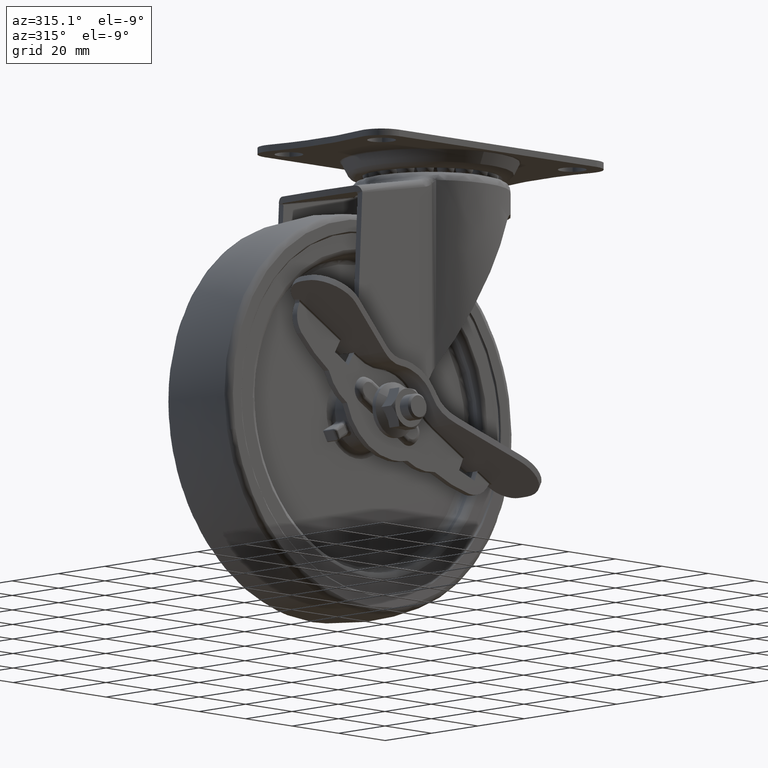
[diagram: clean part render]
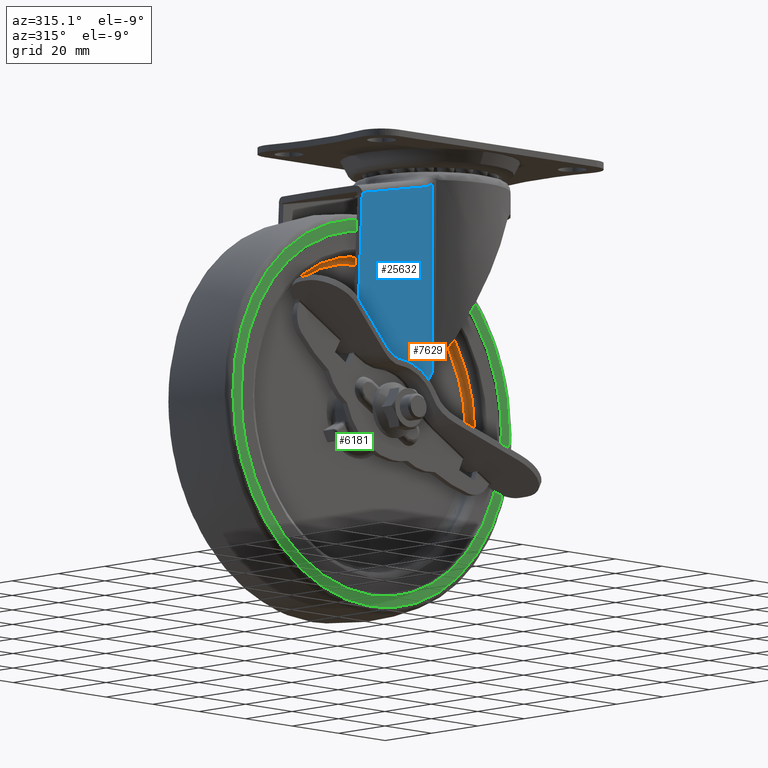
[diagram: same view with three faces highlighted in distinct colors, each labeled with its STEP entity id]
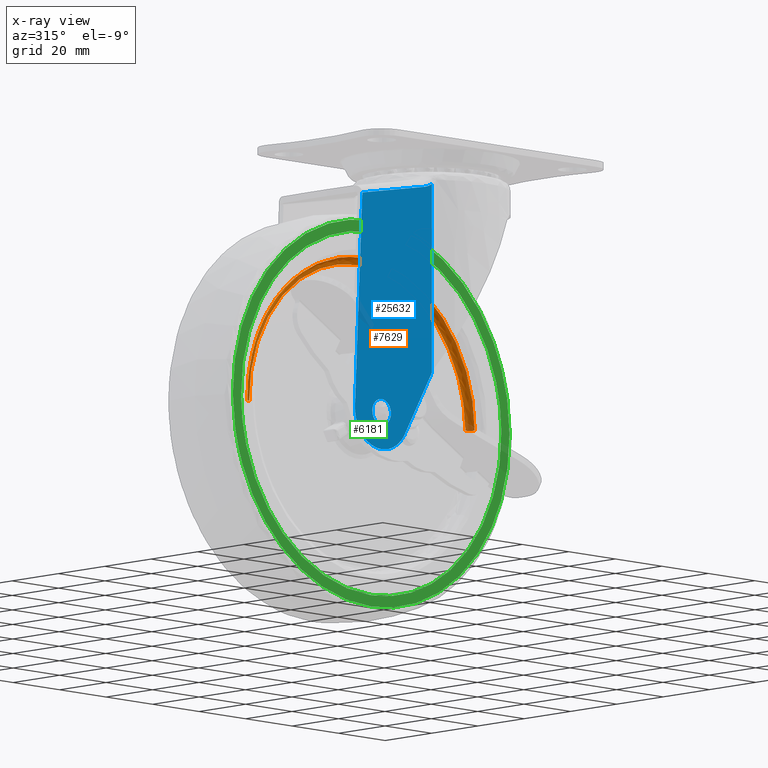
[diagram: x-ray of the same camera — body ghosted, the three highlighted faces saturated]
A machine part, auxiliary view with three faces highlighted in distinct colors.
The next image is the same camera in x-ray (body ghosted, the three faces saturated) — at least one of them is partly hidden behind the body in this view.
Their STEP definitions:

[orange] entity #7629 — the highlighted face is a freeform B-spline surface patch.
#6978=CARTESIAN_POINT('',(-74.180656951126849,-9.499999997735975,-50.114803033572969));
#6979=VERTEX_POINT('',#6978);
#6985=CARTESIAN_POINT('',(-39.0,-9.500000000000000,-35.0));
#6986=VERTEX_POINT('',#6985);
#6987=CARTESIAN_POINT('',(-74.180656951126849,-9.499999997735975,-50.114803033572969));
#6988=CARTESIAN_POINT('',(-72.698974606424272,-9.499999997873353,-48.553317213718813));
#6989=CARTESIAN_POINT('',(-69.602717102643382,-9.499999998141838,-45.697791201050272));
#6990=CARTESIAN_POINT('',(-64.317708608363191,-9.499999998548347,-41.964229653352561));
#6991=CARTESIAN_POINT('',(-59.036626658867462,-9.499999998910809,-39.202302624213011));
#6992=CARTESIAN_POINT('',(-53.564279424862292,-9.499999999249811,-37.133768420361100));
#6993=CARTESIAN_POINT('',(-47.097699198028941,-9.499999999615170,-35.479392849362632));
#6994=CARTESIAN_POINT('',(-42.075151965089411,-9.499999999862128,-34.999603240683719));
#6995=CARTESIAN_POINT('',(-39.0,-9.500000000000000,-35.0));
#6996=B_SPLINE_CURVE_WITH_KNOTS('',3,(#6987,#6988,#6989,#6990,#6991,#6992,#6993,#6994,#6995),.UNSPECIFIED.,.F.,.U.,(4,1,1,1,1,1,4),(0.000000041005450,6.457754716654250,12.608029212565750,19.373335711454800,24.293478955838559,30.136229500375691,39.361603824997950),.UNSPECIFIED.);
#6997=EDGE_CURVE('',#6979,#6986,#6996,.T.);
#6999=CARTESIAN_POINT('',(9.496170643882927,-9.499999995595116,-82.890547065486345));
#7000=VERTEX_POINT('',#6999);
#7001=CARTESIAN_POINT('',(-39.0,-9.500000000000000,-35.0));
#7002=CARTESIAN_POINT('',(-35.555815748306223,-9.499999999841672,-34.999371147322421));
#7003=CARTESIAN_POINT('',(-30.635892662372001,-9.499999999591463,-35.526395429319322));
#7004=CARTESIAN_POINT('',(-23.969897411268740,-9.499999999204812,-37.290516568198278));
#7005=CARTESIAN_POINT('',(-18.352660169065640,-9.499999998848997,-39.438150934517708));
#7006=CARTESIAN_POINT('',(-12.651581532730759,-9.499999998443604,-42.591375214210089));
#7007=CARTESIAN_POINT('',(-6.507479745206156,-9.499999997951212,-47.215544521397952));
#7008=CARTESIAN_POINT('',(-1.428287148660754,-9.499999997478104,-52.481594693142483));
#7009=CARTESIAN_POINT('',(2.430644757125946,-9.499999997046885,-58.086832356298181));
#7010=CARTESIAN_POINT('',(5.121491607681079,-9.499999996692935,-63.126890719148548));
#7011=CARTESIAN_POINT('',(7.100567144622151,-9.499999996378559,-68.070112238423519));
#7012=CARTESIAN_POINT('',(8.913860888032179,-9.499999995987919,-74.828264317330778));
#7013=CARTESIAN_POINT('',(9.457008108440796,-9.499999995739927,-79.741833588307088));
#7014=CARTESIAN_POINT('',(9.496170643882927,-9.499999995595116,-82.890547065486345));
#7015=B_SPLINE_CURVE_WITH_KNOTS('',3,(#7001,#7002,#7003,#7004,#7005,#7006,#7007,#7008,#7009,#7010,#7011,#7012,#7013,#7014),.UNSPECIFIED.,.F.,.U.,(4,1,1,1,1,1,1,1,1,1,1,4),(0.000000141807746,10.332371825696880,14.760597721479680,20.664842917087551,28.340381362794211,34.244595621296753,43.691335859950563,50.186003276613540,54.614217320634587,60.813693660618092,66.127497023698297,75.574269539249329),.UNSPECIFIED.);
#7016=EDGE_CURVE('',#6986,#7000,#7015,.T.);
#7077=CARTESIAN_POINT('',(-87.496170643882920,-9.499999995595115,-84.109452934513655));
#7078=VERTEX_POINT('',#7077);
#7095=CARTESIAN_POINT('',(-87.496170643882920,-9.499999995595115,-84.109452934513655));
#7096=CARTESIAN_POINT('',(-87.525686591361563,-9.499999995700019,-81.770165551270765));
#7097=CARTESIAN_POINT('',(-87.251044590311494,-9.499999995920566,-77.184910461741893));
#7098=CARTESIAN_POINT('',(-86.097336204739236,-9.499999996228809,-71.536492359336222));
#7099=CARTESIAN_POINT('',(-84.299252534061395,-9.499999996566954,-65.864607341208099));
#7100=CARTESIAN_POINT('',(-82.058760405943531,-9.499999996894452,-60.868452307373971));
#7101=CARTESIAN_POINT('',(-78.513708512122292,-9.499999997313267,-55.140883940754051));
#7102=CARTESIAN_POINT('',(-75.858260266579251,-9.499999997580641,-51.882403660125547));
#7103=CARTESIAN_POINT('',(-74.180656951126849,-9.499999997735975,-50.114803033572969));
#7104=B_SPLINE_CURVE_WITH_KNOTS('',3,(#7095,#7096,#7097,#7098,#7099,#7100,#7101,#7102,#7103),.UNSPECIFIED.,.F.,.U.,(4,1,1,1,1,1,4),(0.000000036565730,7.018414573749677,13.744427147615960,17.253662044039601,24.856910431854370,30.120749616835511,37.431609632643173),.UNSPECIFIED.);
#7105=EDGE_CURVE('',#7078,#6979,#7104,.T.);
#7496=CARTESIAN_POINT('',(7.496328603381452,-7.500000000000002,-82.915679143672293));
#7497=VERTEX_POINT('',#7496);
#7498=CARTESIAN_POINT('',(9.496170643882927,-9.499999995595116,-82.890547065486345));
#7499=CARTESIAN_POINT('',(9.496537260853209,-9.221773971194303,-82.890542458131137));
#7500=CARTESIAN_POINT('',(9.398945375147148,-8.763955988531768,-82.891768898357924));
#7501=CARTESIAN_POINT('',(9.009339062976466,-8.131150284390106,-82.896665093148258));
#7502=CARTESIAN_POINT('',(8.395790611878212,-7.640111305720833,-82.904375575972310));
#7503=CARTESIAN_POINT('',(7.807285632403349,-7.499499035645418,-82.911771336775388));
#7504=CARTESIAN_POINT('',(7.496328603381452,-7.500000000000002,-82.915679143672293));
#7505=B_SPLINE_CURVE_WITH_KNOTS('',3,(#7498,#7499,#7500,#7501,#7502,#7503,#7504),.UNSPECIFIED.,.F.,.U.,(4,1,1,1,4),(0.000000633035791,0.834508086223986,1.374522799296816,2.208981106556507,3.141671459302709),.UNSPECIFIED.);
#7506=EDGE_CURVE('',#7000,#7497,#7505,.T.);
#7527=CARTESIAN_POINT('',(-85.496328603381443,-7.500000000000002,-84.084320856327707));
#7528=VERTEX_POINT('',#7527);
#7546=CARTESIAN_POINT('',(-87.496170643882920,-9.499999995595115,-84.109452934513655));
#7547=CARTESIAN_POINT('',(-87.496276462990849,-9.287276586730439,-84.109454264397783));
#7548=CARTESIAN_POINT('',(-87.432929846458578,-8.894642713717198,-84.108658185544627));
#7549=CARTESIAN_POINT('',(-87.172242581246792,-8.360416293587067,-84.105382120502938));
#7550=CARTESIAN_POINT('',(-86.816803923201903,-7.968279253279754,-84.100915311652116));
#7551=CARTESIAN_POINT('',(-86.264880293235535,-7.609035486608735,-84.093979269888237));
#7552=CARTESIAN_POINT('',(-85.807323328989867,-7.499456634869910,-84.088229136958304));
#7553=CARTESIAN_POINT('',(-85.496328603381443,-7.500000000000002,-84.084320856327707));
#7554=B_SPLINE_CURVE_WITH_KNOTS('',3,(#7546,#7547,#7548,#7549,#7550,#7551,#7552,#7553),.UNSPECIFIED.,.F.,.U.,(4,1,1,1,1,4),(0.000000633038859,0.638145693421199,1.178170104753059,1.767149292912491,2.208981106557346,3.141671459302707),.UNSPECIFIED.);
#7555=EDGE_CURVE('',#7078,#7528,#7554,.T.);
#7562=CARTESIAN_POINT('',(-87.491329757116077,-9.639074218226494,-84.109392098763081));
#7563=CARTESIAN_POINT('',(-88.100721855879129,-9.639074218226494,-35.618062341647011));
#7564=CARTESIAN_POINT('',(-39.609392098763081,-9.639074218226494,-35.008670242883930));
#7565=CARTESIAN_POINT('',(8.881937658352985,-9.639074218226494,-34.399278144120863));
#7566=CARTESIAN_POINT('',(9.491329757116072,-9.639074218226494,-82.890607901236933));
#7567=CARTESIAN_POINT('',(-87.651232687144017,-7.344925651964494,-84.111401604021353));
#7568=CARTESIAN_POINT('',(-88.262634291165369,-7.344925651964491,-35.460168916877343));
#7569=CARTESIAN_POINT('',(-39.611401604021360,-7.344925651964494,-34.848767312855990));
#7570=CARTESIAN_POINT('',(9.039831083122648,-7.344925651964491,-34.237365708834616));
#7571=CARTESIAN_POINT('',(9.651232687144017,-7.344925651964494,-82.888598395978661));
#7572=CARTESIAN_POINT('',(-85.357265261717131,-7.504841272936474,-84.082573241696025));
#7573=CARTESIAN_POINT('',(-85.939838503413171,-7.504841272936472,-37.725307979978915));
#7574=CARTESIAN_POINT('',(-39.582573241696046,-7.504841272936474,-37.142734738282883));
#7575=CARTESIAN_POINT('',(6.774692020021091,-7.504841272936472,-36.560161496586844));
#7576=CARTESIAN_POINT('',(7.357265261717119,-7.504841272936474,-82.917426758303961));
#7584=(BOUNDED_SURFACE()B_SPLINE_SURFACE(2,2,((#7562,#7567,#7572),(#7563,#7568,#7573),(#7564,#7569,#7574),(#7565,#7570,#7575),(#7566,#7571,#7576)),.UNSPECIFIED.,.F.,.F.,.U.)B_SPLINE_SURFACE_WITH_KNOTS((3,2,3),(3,3),(0.0,80.349409823239583,160.698819646479190),(0.0,3.644747891325113),.UNSPECIFIED.)GEOMETRIC_REPRESENTATION_ITEM()RATIONAL_B_SPLINE_SURFACE(((0.910479795090997,0.597479572841838,0.910479806786608),(0.643806437242182,0.422481857576905,0.643806445512228),(0.910479795090997,0.597479572841838,0.910479806786608),(0.643806437242182,0.422481857576905,0.643806445512228),(0.910479795090997,0.597479572841838,0.910479806786608)))REPRESENTATION_ITEM('')SURFACE());
#7585=ORIENTED_EDGE('',*,*,#7016,.F.);
#7586=ORIENTED_EDGE('',*,*,#6997,.F.);
#7587=ORIENTED_EDGE('',*,*,#7105,.F.);
#7588=ORIENTED_EDGE('',*,*,#7555,.T.);
#7589=CARTESIAN_POINT('',(-39.0,-7.500000000000000,-37.000000000000007));
#7590=VERTEX_POINT('',#7589);
#7591=CARTESIAN_POINT('',(-85.496328603381443,-7.500000000000002,-84.084320856327707));
#7592=CARTESIAN_POINT('',(-85.526585281687360,-7.500000000000030,-81.687814578225755));
#7593=CARTESIAN_POINT('',(-85.215320212881679,-7.499999999999951,-76.890184472976102));
#7594=CARTESIAN_POINT('',(-83.708830454282406,-7.500000000000069,-70.132953492067386));
#7595=CARTESIAN_POINT('',(-81.446624383377241,-7.499999999999910,-64.208205602314351));
#7596=CARTESIAN_POINT('',(-78.908433404002935,-7.500000000000129,-59.466980004247780));
#7597=CARTESIAN_POINT('',(-75.834781542739648,-7.500000000000008,-54.941843221002422));
#7598=CARTESIAN_POINT('',(-71.365513133245429,-7.499999999999689,-49.785178882975913));
#7599=CARTESIAN_POINT('',(-65.537122264330634,-7.500000000000283,-45.038682624414172));
#7600=CARTESIAN_POINT('',(-59.007927340037952,-7.499999999999644,-41.358156468656396));
#7601=CARTESIAN_POINT('',(-52.656313983041322,-7.500000000000143,-38.863772364122887));
#7602=CARTESIAN_POINT('',(-45.902456823645203,-7.499999999999909,-37.334635048283111));
#7603=CARTESIAN_POINT('',(-41.204950248261902,-7.500000000000086,-36.999928481930887));
#7604=CARTESIAN_POINT('',(-39.0,-7.500000000000000,-37.000000000000007));
#7605=B_SPLINE_CURVE_WITH_KNOTS('',3,(#7591,#7592,#7593,#7594,#7595,#7596,#7597,#7598,#7599,#7600,#7601,#7602,#7603,#7604),.UNSPECIFIED.,.F.,.U.,(4,1,1,1,1,1,1,1,1,1,1,4),(0.000000152295399,7.190078892850991,14.380167339055140,20.707453227692501,26.171917276746999,30.486029994981681,37.100753003393791,46.591753619086830,52.919031102369971,59.533939999015900,67.011620260206101,73.626482814978502),.UNSPECIFIED.);
#7606=EDGE_CURVE('',#7528,#7590,#7605,.T.);
#7607=ORIENTED_EDGE('',*,*,#7606,.T.);
#7608=CARTESIAN_POINT('',(-39.0,-7.500000000000000,-37.000000000000007));
#7609=CARTESIAN_POINT('',(-36.830067663631091,-7.500000000000018,-36.999921324377453));
#7610=CARTESIAN_POINT('',(-32.112766594945327,-7.499999999999977,-37.330694781935527));
#7611=CARTESIAN_POINT('',(-26.203146252249802,-7.500000000000023,-38.665610526675302));
#7612=CARTESIAN_POINT('',(-20.697231267462321,-7.499999999999991,-40.656563934896909));
#7613=CARTESIAN_POINT('',(-15.768117632838271,-7.499999999999927,-43.058642224380122));
#7614=CARTESIAN_POINT('',(-10.965854283023811,-7.500000000000187,-46.255850008759339));
#7615=CARTESIAN_POINT('',(-6.663976854432420,-7.499999999999829,-49.946898497909217));
#7616=CARTESIAN_POINT('',(-3.252647599961513,-7.500000000000024,-53.615523521629179));
#7617=CARTESIAN_POINT('',(-0.152165484676570,-7.500000000000086,-57.784083786737462));
#7618=CARTESIAN_POINT('',(2.681029525956723,-7.499999999999952,-62.586362143312613));
#7619=CARTESIAN_POINT('',(4.976426669987720,-7.500000000000087,-67.983600451373505));
#7620=CARTESIAN_POINT('',(6.900930989684400,-7.500000000000011,-74.903287990607822));
#7621=CARTESIAN_POINT('',(7.457630195215247,-7.499999999999825,-79.802466830171099));
#7622=CARTESIAN_POINT('',(7.496328603381452,-7.500000000000002,-82.915679143672293));
#7623=B_SPLINE_CURVE_WITH_KNOTS('',3,(#7608,#7609,#7610,#7611,#7612,#7613,#7614,#7615,#7616,#7617,#7618,#7619,#7620,#7621,#7622),.UNSPECIFIED.,.F.,.U.,(4,1,1,1,1,1,1,1,1,1,1,1,4),(0.000000145821645,6.509812728814410,14.151893065257980,18.114452504288248,24.058291204621678,30.568157627513219,35.379803995993662,41.040533731120007,45.569151897447242,50.946893683608252,57.739813653531812,63.117555439695607,72.457804845170074),.UNSPECIFIED.);
#7624=EDGE_CURVE('',#7590,#7497,#7623,.T.);
#7625=ORIENTED_EDGE('',*,*,#7624,.T.);
#7626=ORIENTED_EDGE('',*,*,#7506,.F.);
#7627=EDGE_LOOP('',(#7585,#7586,#7587,#7588,#7607,#7625,#7626));
#7628=FACE_OUTER_BOUND('',#7627,.T.);
#7629=ADVANCED_FACE('',(#7628),#7584,.F.);

[blue] entity #25632 — the highlighted face is a freeform B-spline surface patch.
#23123=CARTESIAN_POINT('',(-36.246582802091638,-18.0,-86.401496770358406));
#23124=VERTEX_POINT('',#23123);
#23130=CARTESIAN_POINT('',(-35.000000000003283,-17.999999999999570,-83.499994880052640));
#23131=VERTEX_POINT('',#23130);
#23132=CARTESIAN_POINT('',(-36.246582802091638,-18.0,-86.401496770358406));
#23133=CARTESIAN_POINT('',(-35.878242760254132,-17.999999999999918,-86.052638804016354));
#23134=CARTESIAN_POINT('',(-35.237704646695882,-17.999999999999790,-85.156265672622084));
#23135=CARTESIAN_POINT('',(-34.999138961856559,-17.999999999999620,-84.075002849923550));
#23136=CARTESIAN_POINT('',(-35.000000000003283,-17.999999999999570,-83.499994880052640));
#23137=B_SPLINE_CURVE_WITH_KNOTS('',3,(#23132,#23133,#23134,#23135,#23136),.UNSPECIFIED.,.F.,.U.,(4,1,4),(0.000000117775536,1.521778760297003,3.246404302634628),.UNSPECIFIED.);
#23138=EDGE_CURVE('',#23124,#23131,#23137,.T.);
#23140=CARTESIAN_POINT('',(-39.0,-18.0,-79.500000000000000));
#23141=VERTEX_POINT('',#23140);
#23142=CARTESIAN_POINT('',(-35.000000000003283,-17.999999999999570,-83.499994880052640));
#23143=CARTESIAN_POINT('',(-34.999870221922492,-17.999999999999559,-83.107287149434256));
#23144=CARTESIAN_POINT('',(-35.126154847170142,-17.999999999999609,-82.256481420677716));
#23145=CARTESIAN_POINT('',(-35.723201400971753,-17.999999999999670,-81.069719462325452));
#23146=CARTESIAN_POINT('',(-36.685492100371810,-17.999999999999659,-80.153860126783812));
#23147=CARTESIAN_POINT('',(-37.821967028561232,-18.000000000000131,-79.616555386016103));
#23148=CARTESIAN_POINT('',(-38.607288934396223,-17.999999999999758,-79.499841779476981));
#23149=CARTESIAN_POINT('',(-39.0,-18.0,-79.500000000000000));
#23150=B_SPLINE_CURVE_WITH_KNOTS('',3,(#23142,#23143,#23144,#23145,#23146,#23147,#23148,#23149),.UNSPECIFIED.,.F.,.U.,(4,1,1,1,1,4),(0.000000495139722,1.178122879609247,2.552673060847774,3.927075995230684,5.105217704747391,6.283340091622367),.UNSPECIFIED.);
#23151=EDGE_CURVE('',#23131,#23141,#23150,.T.);
#23153=CARTESIAN_POINT('',(-41.753417197908362,-18.0,-80.598503229641608));
#23154=VERTEX_POINT('',#23153);
#23155=CARTESIAN_POINT('',(-39.0,-18.0,-79.500000000000000));
#23156=CARTESIAN_POINT('',(-39.474565378936973,-17.999999999999979,-79.499688711971729));
#23157=CARTESIAN_POINT('',(-40.486565318988632,-18.000000000000011,-79.682288636662506));
#23158=CARTESIAN_POINT('',(-41.363701630401792,-18.0,-80.227818857619241));
#23159=CARTESIAN_POINT('',(-41.753417197908362,-18.0,-80.598503229641608));
#23160=B_SPLINE_CURVE_WITH_KNOTS('',3,(#23155,#23156,#23157,#23158,#23159),.UNSPECIFIED.,.F.,.U.,(4,1,4),(0.000000113859853,1.423598938665041,3.036943314918344),.UNSPECIFIED.);
#23161=EDGE_CURVE('',#23141,#23154,#23160,.T.);
#23245=CARTESIAN_POINT('',(-42.999999999996717,-17.999999999999570,-83.500005119947375));
#23246=VERTEX_POINT('',#23245);
#23247=CARTESIAN_POINT('',(-41.753417197908362,-18.0,-80.598503229641608));
#23248=CARTESIAN_POINT('',(-42.171106401164252,-17.999999999999929,-80.993688817557413));
#23249=CARTESIAN_POINT('',(-42.791205673738503,-17.999999999999780,-81.911026918535711));
#23250=CARTESIAN_POINT('',(-43.000497501499026,-17.999999999999581,-82.992685729520460));
#23251=CARTESIAN_POINT('',(-42.999999999996717,-17.999999999999570,-83.500005119947375));
#23252=B_SPLINE_CURVE_WITH_KNOTS('',3,(#23247,#23248,#23249,#23250,#23251),.UNSPECIFIED.,.F.,.U.,(4,1,4),(0.000000117776090,1.724625660117574,3.246404302634649),.UNSPECIFIED.);
#23253=EDGE_CURVE('',#23154,#23246,#23252,.T.);
#23255=CARTESIAN_POINT('',(-39.0,-18.0,-87.500000000000014));
#23256=VERTEX_POINT('',#23255);
#23257=CARTESIAN_POINT('',(-42.999999999996717,-17.999999999999570,-83.500005119947375));
#23258=CARTESIAN_POINT('',(-43.000761269319973,-17.999999999999581,-84.056490190204130));
#23259=CARTESIAN_POINT('',(-42.833432177064402,-17.999999999999599,-84.841262187843867));
#23260=CARTESIAN_POINT('',(-42.310584435340751,-17.999999999999648,-85.790754140253043));
#23261=CARTESIAN_POINT('',(-41.674866043257602,-17.999999999999741,-86.546810761890583));
#23262=CARTESIAN_POINT('',(-40.570421789466927,-17.999999999999829,-87.284876279869593));
#23263=CARTESIAN_POINT('',(-39.556400671042447,-17.999999999999961,-87.500683087395345));
#23264=CARTESIAN_POINT('',(-39.0,-18.0,-87.500000000000014));
#23265=B_SPLINE_CURVE_WITH_KNOTS('',3,(#23257,#23258,#23259,#23260,#23261,#23262,#23263,#23264),.UNSPECIFIED.,.F.,.U.,(4,1,1,1,1,4),(0.000000495146915,1.669016749970108,2.356264584677632,3.239778080415392,4.614323834631581,6.283340091622303),.UNSPECIFIED.);
#23266=EDGE_CURVE('',#23246,#23256,#23265,.T.);
#23268=CARTESIAN_POINT('',(-39.0,-18.0,-87.500000000000014));
#23269=CARTESIAN_POINT('',(-38.462145964755493,-18.000000000000039,-87.500618492938401));
#23270=CARTESIAN_POINT('',(-37.450379245465690,-17.999999999999929,-87.292562437833055));
#23271=CARTESIAN_POINT('',(-36.590605128250253,-18.000000000000060,-86.728388024498486));
#23272=CARTESIAN_POINT('',(-36.246582802091638,-18.0,-86.401496770358406));
#23273=B_SPLINE_CURVE_WITH_KNOTS('',3,(#23268,#23269,#23270,#23271,#23272),.UNSPECIFIED.,.F.,.U.,(4,1,4),(0.000000113858127,1.613344490206723,3.036943314918343),.UNSPECIFIED.);
#23274=EDGE_CURVE('',#23256,#23124,#23273,.T.);
#24120=CARTESIAN_POINT('',(-47.324437871731007,-18.0,-16.692599560874150));
#24121=VERTEX_POINT('',#24120);
#24129=CARTESIAN_POINT('',(-20.595461981799801,-18.0,-11.979562999337301));
#24130=VERTEX_POINT('',#24129);
#24131=CARTESIAN_POINT('',(-20.595461981799801,-18.0,-11.979562999337301));
#24132=CARTESIAN_POINT('',(-47.324437871731007,-18.0,-16.692599560874150));
#24133=QUASI_UNIFORM_CURVE('',1,(#24131,#24132),.UNSPECIFIED.,.F.,.U.);
#24134=EDGE_CURVE('',#24130,#24121,#24133,.T.);
#24771=CARTESIAN_POINT('',(-17.385338650713699,-18.0,-10.731464382610120));
#24772=VERTEX_POINT('',#24771);
#24788=CARTESIAN_POINT('',(-17.385338650713699,-18.0,-68.974435464691908));
#24789=VERTEX_POINT('',#24788);
#24790=CARTESIAN_POINT('',(-17.385338650713699,-18.0,-68.974435464691908));
#24791=CARTESIAN_POINT('',(-17.385338650713699,-18.0,-10.731464382610120));
#24792=QUASI_UNIFORM_CURVE('',1,(#24790,#24791),.UNSPECIFIED.,.F.,.U.);
#24793=EDGE_CURVE('',#24789,#24772,#24792,.T.);
#24945=CARTESIAN_POINT('',(-50.486919999999998,-18.0,-82.951737399999885));
#24946=VERTEX_POINT('',#24945);
#24973=CARTESIAN_POINT('',(-29.029918070220400,-18.0,-89.231270916077904));
#24974=VERTEX_POINT('',#24973);
#24980=CARTESIAN_POINT('',(-50.486919999999998,-18.0,-82.951737399999885));
#24981=CARTESIAN_POINT('',(-50.532869287687006,-17.999999999999989,-83.909311454658450));
#24982=CARTESIAN_POINT('',(-50.404911673648087,-18.000000000000021,-85.554840938245874));
#24983=CARTESIAN_POINT('',(-49.714636026242111,-17.999999999999989,-87.859758025041188));
#24984=CARTESIAN_POINT('',(-48.587361476790953,-18.000000000000011,-90.033470811992288));
#24985=CARTESIAN_POINT('',(-46.963531714187617,-17.999999999999890,-91.931152706382008));
#24986=CARTESIAN_POINT('',(-45.063260121907710,-18.000000000000330,-93.342707281576267));
#24987=CARTESIAN_POINT('',(-43.125605805073192,-17.999999999999179,-94.307192483823840));
#24988=CARTESIAN_POINT('',(-41.038051287424452,-18.000000000001268,-94.894669506110205));
#24989=CARTESIAN_POINT('',(-38.917931146429417,-17.999999999999432,-95.056619876031831));
#24990=CARTESIAN_POINT('',(-36.524796197899157,-18.000000000000160,-94.827388965606815));
#24991=CARTESIAN_POINT('',(-34.299771092246218,-17.999999999999972,-94.103854418682474));
#24992=CARTESIAN_POINT('',(-32.441749064227707,-18.000000000000028,-92.993286169027797));
#24993=CARTESIAN_POINT('',(-30.667107582074589,-17.999999999999819,-91.560931260121279));
#24994=CARTESIAN_POINT('',(-29.626566788318438,-18.000000000000401,-90.270591926959199));
#24995=CARTESIAN_POINT('',(-29.029918070220400,-18.0,-89.231270916077904));
#24996=B_SPLINE_CURVE_WITH_KNOTS('',3,(#24980,#24981,#24982,#24983,#24984,#24985,#24986,#24987,#24988,#24989,#24990,#24991,#24992,#24993,#24994,#24995),.UNSPECIFIED.,.F.,.U.,(4,1,1,1,1,1,1,1,1,1,1,1,1,4),(0.000000662586086,2.875968530343013,4.913106758737378,7.189952054102086,10.185822380449970,12.342865321516660,14.260201979174980,16.656609576629609,18.813632874855770,20.611156935689628,23.846699073999059,25.764076831970499,27.082253736779190,30.677151544267090),.UNSPECIFIED.);
#24997=EDGE_CURVE('',#24946,#24974,#24996,.T.);
#25084=CARTESIAN_POINT('',(-47.324437871731007,-18.0,-16.692599560874150));
#25085=CARTESIAN_POINT('',(-50.486919999999998,-18.0,-82.951737399999885));
#25086=QUASI_UNIFORM_CURVE('',1,(#25084,#25085),.UNSPECIFIED.,.F.,.U.);
#25087=EDGE_CURVE('',#24121,#24946,#25086,.T.);
#25471=CARTESIAN_POINT('',(-17.385338650713699,-18.0,-68.974435464691908));
#25472=CARTESIAN_POINT('',(-29.029918070220400,-18.0,-89.231270916077904));
#25473=QUASI_UNIFORM_CURVE('',1,(#25471,#25472),.UNSPECIFIED.,.F.,.U.);
#25474=EDGE_CURVE('',#24789,#24974,#25473,.T.);
#25597=CARTESIAN_POINT('',(-52.143826009018831,-18.0,-99.207264207317351));
#25598=CARTESIAN_POINT('',(-15.731748182984809,-18.0,-99.207264207317351));
#25599=CARTESIAN_POINT('',(-52.143826009018831,-18.0,-6.522341651980160));
#25600=CARTESIAN_POINT('',(-15.731748182984809,-18.0,-6.522341651980160));
#25601=B_SPLINE_SURFACE_WITH_KNOTS('',1,1,((#25597,#25599),(#25598,#25600)),.UNSPECIFIED.,.F.,.F.,.U.,(2,2),(2,2),(0.0,36.412077826034022),(0.0,92.684922555337195),.UNSPECIFIED.);
#25602=ORIENTED_EDGE('',*,*,#24793,.T.);
#25603=CARTESIAN_POINT('',(-17.385338650713699,-18.0,-10.731464382610120));
#25604=CARTESIAN_POINT('',(-17.508574236667879,-18.0,-10.808849936441380));
#25605=CARTESIAN_POINT('',(-17.633579930202281,-18.0,-10.883248179351870));
#25606=CARTESIAN_POINT('',(-17.887096326662579,-18.0,-11.026129458125631));
#25607=CARTESIAN_POINT('',(-18.015217548766461,-18.0,-11.094387312807459));
#25608=CARTESIAN_POINT('',(-18.402788452633189,-18.0,-11.289376368172450));
#25609=CARTESIAN_POINT('',(-18.665772065658949,-18.0,-11.406554119449311));
#25610=CARTESIAN_POINT('',(-19.200896641704659,-18.000000000000011,-11.615415219004181));
#25611=CARTESIAN_POINT('',(-19.473037990649988,-18.0,-11.707097492851540));
#25612=CARTESIAN_POINT('',(-20.026871605233630,-18.0,-11.863871933218981));
#25613=CARTESIAN_POINT('',(-20.308560136630589,-18.0,-11.928974496005820));
#25614=CARTESIAN_POINT('',(-20.595461981799801,-18.0,-11.979562999337301));
#25615=B_SPLINE_CURVE_WITH_KNOTS('',3,(#25603,#25604,#25605,#25606,#25607,#25608,#25609,#25610,#25611,#25612,#25613,#25614),.UNSPECIFIED.,.F.,.U.,(4,2,2,2,2,4),(0.0,0.125000000000000,0.250000000000000,0.500000000000000,0.750000000000000,1.0),.UNSPECIFIED.);
#25616=EDGE_CURVE('',#24772,#24130,#25615,.T.);
#25617=ORIENTED_EDGE('',*,*,#25616,.T.);
#25618=ORIENTED_EDGE('',*,*,#24134,.T.);
#25619=ORIENTED_EDGE('',*,*,#25087,.T.);
#25620=ORIENTED_EDGE('',*,*,#24997,.T.);
#25621=ORIENTED_EDGE('',*,*,#25474,.F.);
#25622=EDGE_LOOP('',(#25602,#25617,#25618,#25619,#25620,#25621));
#25623=FACE_OUTER_BOUND('',#25622,.T.);
#25624=ORIENTED_EDGE('',*,*,#23151,.F.);
#25625=ORIENTED_EDGE('',*,*,#23138,.F.);
#25626=ORIENTED_EDGE('',*,*,#23274,.F.);
#25627=ORIENTED_EDGE('',*,*,#23266,.F.);
#25628=ORIENTED_EDGE('',*,*,#23253,.F.);
#25629=ORIENTED_EDGE('',*,*,#23161,.F.);
#25630=EDGE_LOOP('',(#25624,#25625,#25626,#25627,#25628,#25629));
#25631=FACE_BOUND('',#25630,.T.);
#25632=ADVANCED_FACE('',(#25623,#25631),#25601,.T.);

[green] entity #6181 — the highlighted face is a freeform B-spline surface patch.
#5960=CARTESIAN_POINT('',(-97.466243076312793,-13.499999999997820,-94.653032352833236));
#5961=VERTEX_POINT('',#5960);
#5972=CARTESIAN_POINT('',(-39.0,-13.499999999995490,-23.979485000000000));
#5973=VERTEX_POINT('',#5972);
#5974=CARTESIAN_POINT('',(-97.466243076312793,-13.499999999997820,-94.653032352833236));
#5975=CARTESIAN_POINT('',(-98.181997749134098,-13.499999999997760,-90.903025246309070));
#5976=CARTESIAN_POINT('',(-98.762043791389672,-13.499999999997710,-84.628825119619719));
#5977=CARTESIAN_POINT('',(-98.223031945545401,-13.499999999997399,-76.450099572906552));
#5978=CARTESIAN_POINT('',(-96.982097262399961,-13.499999999997360,-69.461173205307375));
#5979=CARTESIAN_POINT('',(-94.735549557732128,-13.499999999997121,-62.001995333363269));
#5980=CARTESIAN_POINT('',(-91.354338646422377,-13.499999999996980,-54.825840085579749));
#5981=CARTESIAN_POINT('',(-87.075195567893658,-13.499999999996730,-48.163025435316001));
#5982=CARTESIAN_POINT('',(-82.109729600501637,-13.499999999996559,-42.160580102207611));
#5983=CARTESIAN_POINT('',(-75.822637766103796,-13.499999999996341,-36.473497870146829));
#5984=CARTESIAN_POINT('',(-69.240319110213278,-13.499999999996140,-32.056797015344863));
#5985=CARTESIAN_POINT('',(-62.047534104893103,-13.499999999995961,-28.427296012026151));
#5986=CARTESIAN_POINT('',(-54.551333734459888,-13.499999999995760,-25.831861069054991));
#5987=CARTESIAN_POINT('',(-46.499010819882969,-13.499999999995650,-24.291935164682030));
#5988=CARTESIAN_POINT('',(-41.454233574051777,-13.499999999995600,-23.979424987348501));
#5989=CARTESIAN_POINT('',(-39.0,-13.499999999995490,-23.979485000000000));
#5990=B_SPLINE_CURVE_WITH_KNOTS('',3,(#5974,#5975,#5976,#5977,#5978,#5979,#5980,#5981,#5982,#5983,#5984,#5985,#5986,#5987,#5988,#5989),.UNSPECIFIED.,.F.,.U.,(4,1,1,1,1,1,1,1,1,1,1,1,1,4),(0.000000121151572,11.453043682491231,18.815817312776019,24.542381955685560,32.723179254863837,42.131164353953139,48.266767742444479,56.447406932917922,65.446339922642352,73.627145509668139,80.171786648472761,89.579747366264499,97.351454218579775,104.714165169592210),.UNSPECIFIED.);
#5991=EDGE_CURVE('',#5961,#5973,#5990,.T.);
#5993=CARTESIAN_POINT('',(19.466243076312811,-13.499999999997780,-72.346967647166778));
#5994=VERTEX_POINT('',#5993);
#5995=CARTESIAN_POINT('',(-39.0,-13.499999999995490,-23.979485000000000));
#5996=CARTESIAN_POINT('',(-34.929024689602308,-13.499999999995810,-23.978832132506401));
#5997=CARTESIAN_POINT('',(-29.251445087229371,-13.499999999995870,-24.564325845034091));
#5998=CARTESIAN_POINT('',(-21.659644944963489,-13.499999999996479,-26.468160710661611));
#5999=CARTESIAN_POINT('',(-15.389044901883571,-13.499999999996639,-28.687367815287889));
#6000=CARTESIAN_POINT('',(-9.250863084551089,-13.499999999996980,-31.782755802788149));
#6001=CARTESIAN_POINT('',(-3.085171068986549,-13.499999999997220,-35.874233900713527));
#6002=CARTESIAN_POINT('',(2.831605618973930,-13.499999999997470,-40.850013629501632));
#6003=CARTESIAN_POINT('',(9.018966680375430,-13.499999999997559,-47.861088655687823));
#6004=CARTESIAN_POINT('',(14.067340257838660,-13.499999999998140,-55.991392865262668));
#6005=CARTESIAN_POINT('',(17.550621842321231,-13.499999999997240,-64.314715320027702));
#6006=CARTESIAN_POINT('',(18.964484594856909,-13.499999999997691,-69.716158842842304));
#6007=CARTESIAN_POINT('',(19.466243076312811,-13.499999999997780,-72.346967647166778));
#6008=B_SPLINE_CURVE_WITH_KNOTS('',3,(#5995,#5996,#5997,#5998,#5999,#6000,#6001,#6002,#6003,#6004,#6005,#6006,#6007),.UNSPECIFIED.,.F.,.U.,(4,1,1,1,1,1,1,1,1,1,4),(0.000000103743730,12.212742447804811,17.033553990874740,23.461332127139318,32.138821861237140,37.602433881337348,45.637105009056981,55.278747918621860,65.563174106010493,74.240657015108894,82.275353540551720),.UNSPECIFIED.);
#6009=EDGE_CURVE('',#5973,#5994,#6008,.T.);
#6051=CARTESIAN_POINT('',(-39.0,-13.500000000000000,-143.020514999999990));
#6052=VERTEX_POINT('',#6051);
#6053=CARTESIAN_POINT('',(19.466243076312811,-13.499999999997780,-72.346967647166778));
#6054=CARTESIAN_POINT('',(20.002876986218698,-13.499999999997851,-75.159491763789646));
#6055=CARTESIAN_POINT('',(20.732746815480489,-13.499999999997909,-81.405289702939470));
#6056=CARTESIAN_POINT('',(20.356124464149730,-13.499999999998151,-90.429503580470282));
#6057=CARTESIAN_POINT('',(18.649473278186331,-13.499999999998300,-99.008237434753596));
#6058=CARTESIAN_POINT('',(16.211685599460129,-13.499999999998540,-106.116904021265900));
#6059=CARTESIAN_POINT('',(12.821817051967029,-13.499999999998670,-113.123484082998100));
#6060=CARTESIAN_POINT('',(8.993218444089376,-13.499999999998851,-118.951976894538800));
#6061=CARTESIAN_POINT('',(3.796714254086318,-13.499999999999050,-125.103321830251500));
#6062=CARTESIAN_POINT('',(-1.950351056093363,-13.499999999999231,-130.374199477308710));
#6063=CARTESIAN_POINT('',(-9.327064696159079,-13.499999999999460,-135.324062539761710));
#6064=CARTESIAN_POINT('',(-16.589108657199269,-13.499999999999520,-138.833158221597700));
#6065=CARTESIAN_POINT('',(-23.600413449755820,-13.499999999999959,-141.126418385861310));
#6066=CARTESIAN_POINT('',(-30.955660588019200,-13.499999999999300,-142.638281528440390));
#6067=CARTESIAN_POINT('',(-36.000390130269992,-13.500000000000989,-143.020705979355990));
#6068=CARTESIAN_POINT('',(-39.0,-13.500000000000000,-143.020514999999990));
#6069=B_SPLINE_CURVE_WITH_KNOTS('',3,(#6053,#6054,#6055,#6056,#6057,#6058,#6059,#6060,#6061,#6062,#6063,#6064,#6065,#6066,#6067,#6068),.UNSPECIFIED.,.F.,.U.,(4,1,1,1,1,1,1,1,1,1,1,1,1,4),(0.000000121328497,8.589803141806925,18.815817312919069,26.996624048658500,34.768379118873952,41.313048463784881,50.311942262806888,55.629304832491577,65.446339922710649,73.627145509720933,82.216987016340539,89.579747366291315,95.715356306213835,104.714165169591500),.UNSPECIFIED.);
#6070=EDGE_CURVE('',#5994,#6052,#6069,.T.);
#6072=CARTESIAN_POINT('',(-39.0,-13.500000000000000,-143.020514999999990));
#6073=CARTESIAN_POINT('',(-42.321002635567112,-13.499999999999931,-143.020756375404690));
#6074=CARTESIAN_POINT('',(-48.105894911600487,-13.499999999999741,-142.535055824321600));
#6075=CARTESIAN_POINT('',(-56.885794668906883,-13.499999999999600,-140.484158313121410));
#6076=CARTESIAN_POINT('',(-64.093515548721527,-13.499999999999311,-137.667241336976700));
#6077=CARTESIAN_POINT('',(-70.383897996730383,-13.499999999999311,-134.190685620677100));
#6078=CARTESIAN_POINT('',(-75.854355723321518,-13.499999999998829,-130.409896544366290));
#6079=CARTESIAN_POINT('',(-81.581573658181014,-13.499999999998780,-125.378321357008400));
#6080=CARTESIAN_POINT('',(-87.582273500803396,-13.499999999998630,-118.352660229823700));
#6081=CARTESIAN_POINT('',(-91.911081265416328,-13.499999999998071,-111.166466877768600));
#6082=CARTESIAN_POINT('',(-95.393498537609375,-13.499999999998369,-103.091454780006700));
#6083=CARTESIAN_POINT('',(-96.824144857314835,-13.499999999996810,-98.020505074256647));
#6084=CARTESIAN_POINT('',(-97.466243076312793,-13.499999999997820,-94.653032352833236));
#6085=B_SPLINE_CURVE_WITH_KNOTS('',3,(#6072,#6073,#6074,#6075,#6076,#6077,#6078,#6079,#6080,#6081,#6082,#6083,#6084),.UNSPECIFIED.,.F.,.U.,(4,1,1,1,1,1,1,1,1,1,4),(0.000000104014703,9.962983374363333,17.354955130947999,26.996608335557180,33.102983218338821,38.888041380325213,46.922595511792032,55.921511368053459,66.527344566701785,71.990980019663851,82.275353540551009),.UNSPECIFIED.);
#6086=EDGE_CURVE('',#6052,#5961,#6085,.T.);
#6092=CARTESIAN_POINT('',(-104.461483223890200,-13.500000000000000,-148.966614217775400));
#6093=CARTESIAN_POINT('',(-104.461483223890300,-13.500000000000000,-18.033382589295378));
#6094=CARTESIAN_POINT('',(26.461378929770369,-13.500000000000000,-148.966614217775400));
#6095=CARTESIAN_POINT('',(26.461378929770369,-13.500000000000000,-18.033382589295378));
#6096=B_SPLINE_SURFACE_WITH_KNOTS('',1,1,((#6092,#6094),(#6093,#6095)),.UNSPECIFIED.,.F.,.F.,.U.,(2,2),(2,2),(0.0,130.933231628480000),(0.0,130.922862153660590),.UNSPECIFIED.);
#6097=ORIENTED_EDGE('',*,*,#5991,.F.);
#6098=ORIENTED_EDGE('',*,*,#6086,.F.);
#6099=ORIENTED_EDGE('',*,*,#6070,.F.);
#6100=ORIENTED_EDGE('',*,*,#6009,.F.);
#6101=EDGE_LOOP('',(#6097,#6098,#6099,#6100));
#6102=FACE_OUTER_BOUND('',#6101,.T.);
#6103=CARTESIAN_POINT('',(-39.0,-13.500000000000000,-139.500000000000000));
#6104=VERTEX_POINT('',#6103);
#6105=CARTESIAN_POINT('',(-94.995578422023968,-13.499999999999989,-84.203698233306540));
#6106=VERTEX_POINT('',#6105);
#6107=CARTESIAN_POINT('',(-39.0,-13.500000000000000,-139.500000000000000));
#6108=CARTESIAN_POINT('',(-42.976788225991641,-13.500000000000011,-139.500664123940790));
#6109=CARTESIAN_POINT('',(-49.452860523893953,-13.499999999999959,-138.807061725411300));
#6110=CARTESIAN_POINT('',(-58.645946176264083,-13.500000000000041,-136.163555959171500));
#6111=CARTESIAN_POINT('',(-66.317489501756782,-13.499999999999959,-132.653520249401990));
#6112=CARTESIAN_POINT('',(-73.905599026130261,-13.500000000000091,-127.601536781957510));
#6113=CARTESIAN_POINT('',(-79.836917211110730,-13.499999999999829,-122.090555433774800));
#6114=CARTESIAN_POINT('',(-84.643170232037946,-13.499999999999970,-116.172321348105300));
#6115=CARTESIAN_POINT('',(-88.961028960403723,-13.500000000000110,-109.338428555549200));
#6116=CARTESIAN_POINT('',(-92.267141586131942,-13.499999999999710,-101.564412498125410));
#6117=CARTESIAN_POINT('',(-94.439184850005688,-13.500000000000680,-92.718861672072507));
#6118=CARTESIAN_POINT('',(-94.957261100489191,-13.499999999998829,-87.271236554975474));
#6119=CARTESIAN_POINT('',(-94.995578422023968,-13.499999999999989,-84.203698233306540));
#6120=B_SPLINE_CURVE_WITH_KNOTS('',3,(#6107,#6108,#6109,#6110,#6111,#6112,#6113,#6114,#6115,#6116,#6117,#6118,#6119),.UNSPECIFIED.,.F.,.U.,(4,1,1,1,1,1,1,1,1,1,4),(0.000000131708461,11.930194067312559,19.429201937550179,28.632522402760578,37.154175576237968,46.698192577148511,52.833813344847997,59.991918831133830,70.899599565213236,78.057705051504598,87.261012217573324),.UNSPECIFIED.);
#6121=EDGE_CURVE('',#6104,#6106,#6120,.T.);
#6122=ORIENTED_EDGE('',*,*,#6121,.T.);
#6123=CARTESIAN_POINT('',(-39.0,-13.500000000000000,-27.500000000000000));
#6124=VERTEX_POINT('',#6123);
#6125=CARTESIAN_POINT('',(-94.995578422023968,-13.499999999999989,-84.203698233306540));
#6126=CARTESIAN_POINT('',(-95.042508533130075,-13.500000000000011,-80.509464157378630));
#6127=CARTESIAN_POINT('',(-94.491049001689490,-13.500000000000000,-74.152293486914829));
#6128=CARTESIAN_POINT('',(-92.142060447828939,-13.499999999999980,-65.195517675754473));
#6129=CARTESIAN_POINT('',(-88.811953720131839,-13.500000000000020,-57.425695101225799));
#6130=CARTESIAN_POINT('',(-83.894667295671425,-13.500000000000011,-49.574517506621333));
#6131=CARTESIAN_POINT('',(-77.247746580527703,-13.499999999999931,-42.141136324283401));
#6132=CARTESIAN_POINT('',(-69.875067763064024,-13.500000000000210,-36.507288197718033));
#6133=CARTESIAN_POINT('',(-63.371688581301832,-13.499999999999890,-32.972791534208959));
#6134=CARTESIAN_POINT('',(-56.760992557227567,-13.500000000000140,-30.209798954916860));
#6135=CARTESIAN_POINT('',(-48.813509465311540,-13.500000000000110,-28.071290234056399));
#6136=CARTESIAN_POINT('',(-42.232700318081278,-13.499999999999890,-27.499749082964051));
#6137=CARTESIAN_POINT('',(-39.0,-13.500000000000000,-27.500000000000000));
#6138=B_SPLINE_CURVE_WITH_KNOTS('',3,(#6125,#6126,#6127,#6128,#6129,#6130,#6131,#6132,#6133,#6134,#6135,#6136,#6137),.UNSPECIFIED.,.F.,.U.,(4,1,1,1,1,1,1,1,1,1,4),(0.000000136625530,11.083504536137610,19.049848039042470,27.708896161474190,36.367988615646617,46.758742532040202,57.495935619518278,64.076805531218596,68.925873054043933,78.970360144916071,88.668452350619233),.UNSPECIFIED.);
#6139=EDGE_CURVE('',#6106,#6124,#6138,.T.);
#6140=ORIENTED_EDGE('',*,*,#6139,.T.);
#6141=CARTESIAN_POINT('',(16.995578422023961,-13.499999999999989,-82.796301766693460));
#6142=VERTEX_POINT('',#6141);
#6143=CARTESIAN_POINT('',(-39.0,-13.500000000000000,-27.500000000000000));
#6144=CARTESIAN_POINT('',(-35.704962845200569,-13.500000000000011,-27.499673265485139));
#6145=CARTESIAN_POINT('',(-30.592168237424151,-13.499999999999931,-27.952689425103770));
#6146=CARTESIAN_POINT('',(-22.941187566926299,-13.500000000000091,-29.705434362763729));
#6147=CARTESIAN_POINT('',(-16.513016387399599,-13.499999999999860,-32.029702235123288));
#6148=CARTESIAN_POINT('',(-10.760470094326980,-13.500000000000020,-35.030995584596731));
#6149=CARTESIAN_POINT('',(-4.868237909518701,-13.500000000000050,-38.901982249290782));
#6150=CARTESIAN_POINT('',(0.758571818702483,-13.499999999999799,-43.729804851400232));
#6151=CARTESIAN_POINT('',(6.283986447018995,-13.500000000000069,-50.244681120703333));
#6152=CARTESIAN_POINT('',(10.359764245437750,-13.499999999999989,-56.696415816261002));
#6153=CARTESIAN_POINT('',(13.014738179058551,-13.499999999999959,-62.493118139773202));
#6154=CARTESIAN_POINT('',(14.962170660072569,-13.500000000000091,-68.195724916888850));
#6155=CARTESIAN_POINT('',(16.478266507403120,-13.499999999999590,-74.621515137016672));
#6156=CARTESIAN_POINT('',(16.958649272099500,-13.500000000000670,-79.842397642747883));
#6157=CARTESIAN_POINT('',(16.995578422023961,-13.499999999999989,-82.796301766693460));
#6158=B_SPLINE_CURVE_WITH_KNOTS('',3,(#6143,#6144,#6145,#6146,#6147,#6148,#6149,#6150,#6151,#6152,#6153,#6154,#6155,#6156,#6157),.UNSPECIFIED.,.F.,.U.,(4,1,1,1,1,1,1,1,1,1,1,1,4),(0.000000131375032,9.885032621609724,15.338847984056430,23.519578840363749,30.336878299602748,34.768121282479939,44.653050979150180,52.492900411634203,60.332793446145558,67.490948620518907,71.581312927972689,78.398617984575353,87.261012217574233),.UNSPECIFIED.);
#6159=EDGE_CURVE('',#6124,#6142,#6158,.T.);
#6160=ORIENTED_EDGE('',*,*,#6159,.T.);
#6161=CARTESIAN_POINT('',(16.995578422023961,-13.499999999999989,-82.796301766693460));
#6162=CARTESIAN_POINT('',(17.039533303851609,-13.500000000000000,-86.259668513691395));
#6163=CARTESIAN_POINT('',(16.648686701615588,-13.500000000000000,-91.113836702789655));
#6164=CARTESIAN_POINT('',(15.154776338093860,-13.499999999999989,-98.119393479288831));
#6165=CARTESIAN_POINT('',(13.571543699649590,-13.500000000000000,-103.078121111797600));
#6166=CARTESIAN_POINT('',(10.985720785432900,-13.500000000000000,-109.009657031303310));
#6167=CARTESIAN_POINT('',(7.404972971270159,-13.500000000000020,-115.228732967754200));
#6168=CARTESIAN_POINT('',(2.417135645161280,-13.499999999999950,-121.473275150968600));
#6169=CARTESIAN_POINT('',(-3.313719324585330,-13.500000000000000,-126.861136830827800));
#6170=CARTESIAN_POINT('',(-9.039567971464605,-13.500000000000011,-130.989539558134310));
#6171=CARTESIAN_POINT('',(-14.628272826589701,-13.499999999999959,-134.027287946471890));
#6172=CARTESIAN_POINT('',(-20.599312360980459,-13.500000000000171,-136.522633466901510));
#6173=CARTESIAN_POINT('',(-28.493951733070780,-13.499999999999471,-138.805086191404400));
#6174=CARTESIAN_POINT('',(-35.074535845078060,-13.500000000000529,-139.500653621739700));
#6175=CARTESIAN_POINT('',(-39.0,-13.500000000000000,-139.500000000000000));
#6176=B_SPLINE_CURVE_WITH_KNOTS('',3,(#6161,#6162,#6163,#6164,#6165,#6166,#6167,#6168,#6169,#6170,#6171,#6172,#6173,#6174,#6175),.UNSPECIFIED.,.F.,.U.,(4,1,1,1,1,1,1,1,1,1,1,1,4),(0.000000136437762,10.390830906099501,14.547131671390730,21.474388332777519,25.977105262934391,33.943448045330783,42.948819035934562,49.875925373366712,57.495935619455373,64.076805531167963,68.925873054003702,76.892195823823755,88.668452350619219),.UNSPECIFIED.);
#6177=EDGE_CURVE('',#6142,#6104,#6176,.T.);
#6178=ORIENTED_EDGE('',*,*,#6177,.T.);
#6179=EDGE_LOOP('',(#6122,#6140,#6160,#6178));
#6180=FACE_BOUND('',#6179,.T.);
#6181=ADVANCED_FACE('',(#6102,#6180),#6096,.F.);